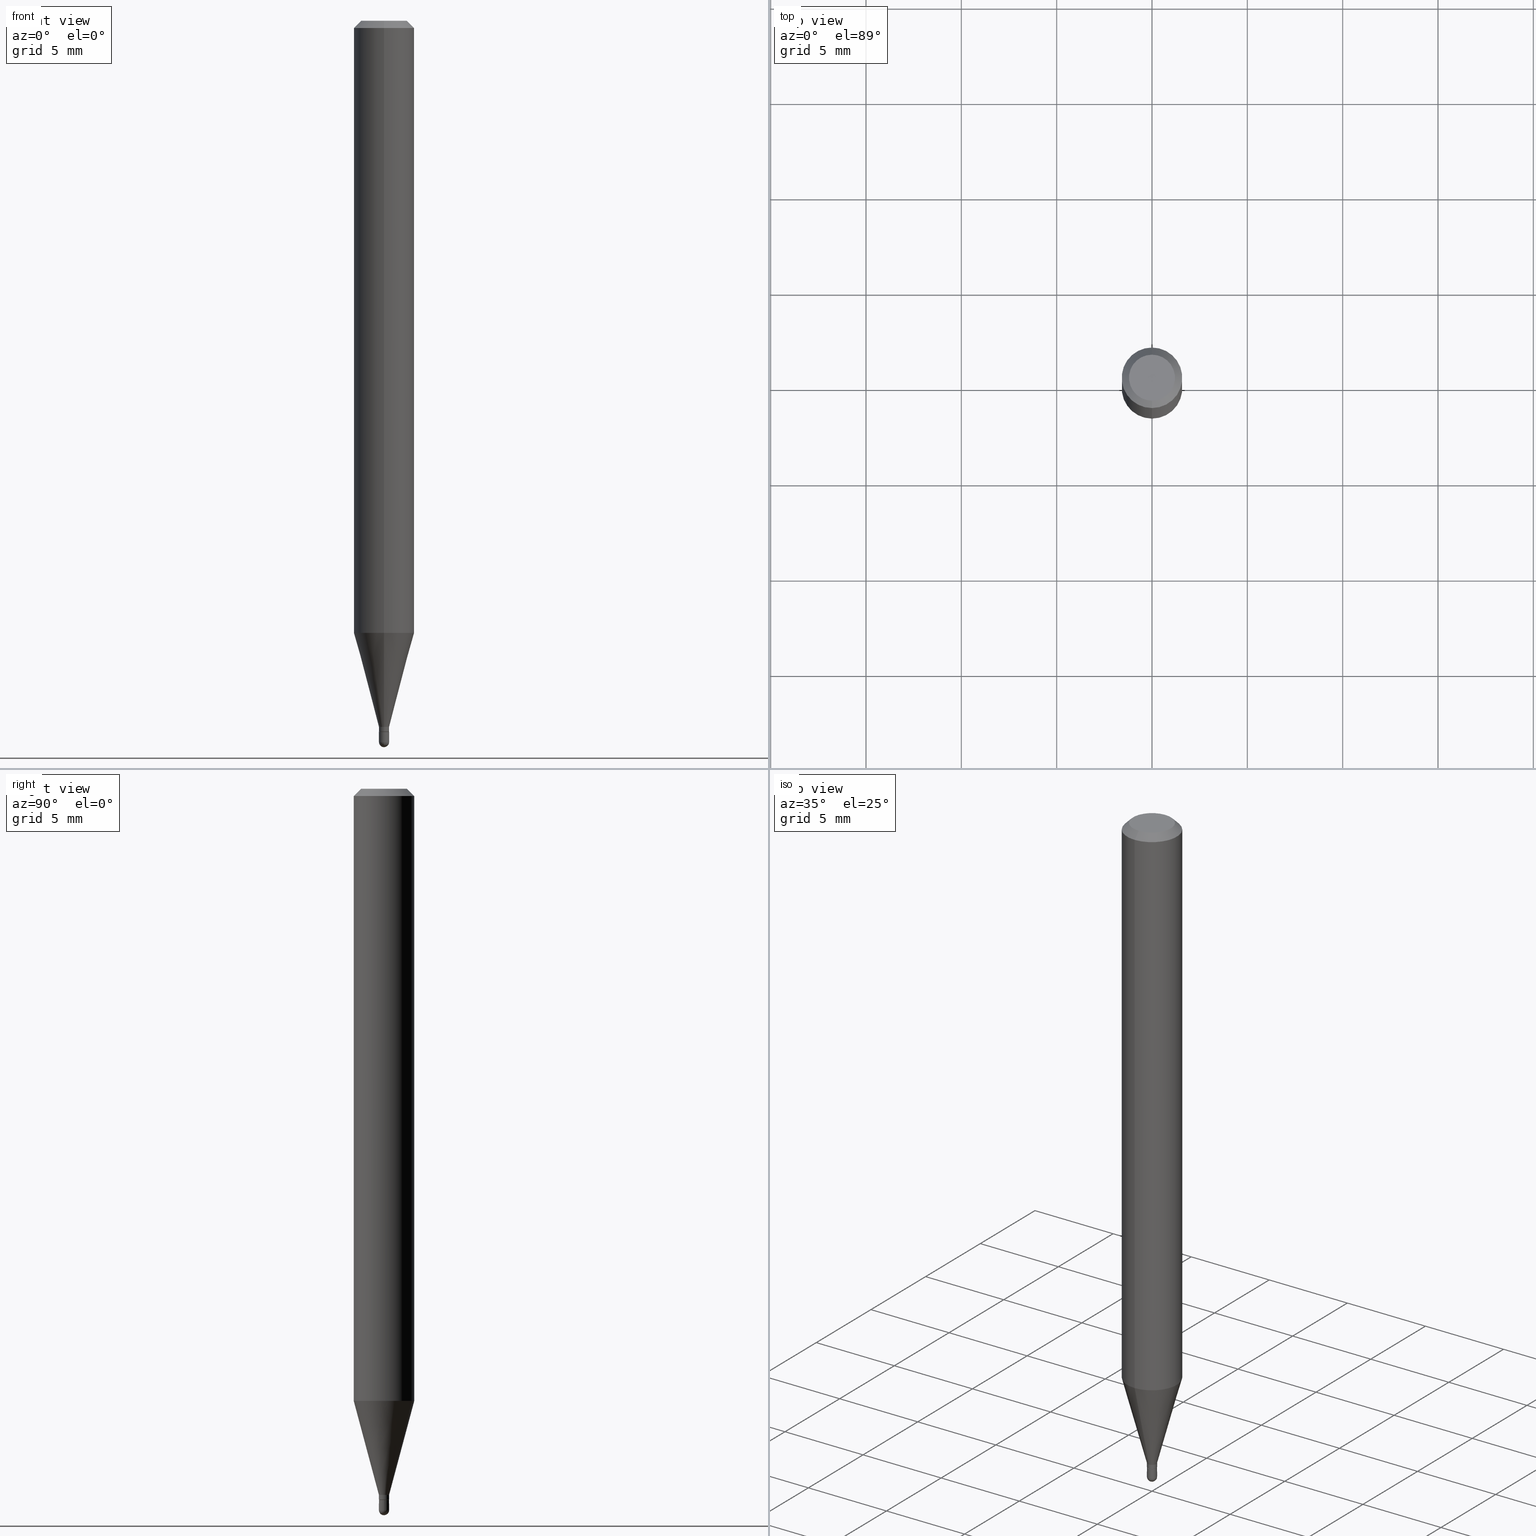
[diagram: canonical four-view strip — front | top / right | iso, engineering-drawing reading convention]
A machine part, canonical four-view strip (front | top / right | iso — engineering-drawing reading convention). The complete STEP part file that produces these views, byte-faithful:
ISO-10303-21;
HEADER;
FILE_DESCRIPTION (( 'STEP AP203' ),
    '1' );
FILE_NAME ('00756.STEP',
    '2024-03-07T18:13:10',
    ( '' ),
    ( '' ),
    'SwSTEP 2.0',
    'SolidWorks 2023',
    '' );
FILE_SCHEMA (( 'CONFIG_CONTROL_DESIGN' ));
ENDSEC;

DATA;
#1 = PRODUCT_RELATED_PRODUCT_CATEGORY ( 'detail', '', ( #112 ) ) ;
#2 = APPLICATION_CONTEXT ( 'configuration controlled 3d designs of mechanical parts and assemblies' ) ;
#3 = DIRECTION ( 'NONE',  ( 4.937700262164548042E-15, 0.7071067811865451302, -0.7071067811865499042 ) ) ;
#4 = ORIENTED_EDGE ( 'NONE', *, *, #195, .F. ) ;
#5 = DIRECTION ( 'NONE',  ( -2.445468806185136597E-29, 3.491481338843145583E-15, 1.000000000000000000 ) ) ;
#6 = ORIENTED_EDGE ( 'NONE', *, *, #237, .F. ) ;
#7 = DIRECTION ( 'NONE',  ( -2.445454255719101212E-29, 3.491502175938669574E-15, 1.000000000000000000 ) ) ;
#8 = EDGE_LOOP ( 'NONE', ( #261, #105, #172, #247 ) ) ;
#9 = EDGE_LOOP ( 'NONE', ( #489, #188, #263, #484 ) ) ;
#10 = DIRECTION ( 'NONE',  ( -2.445454255719101212E-29, 3.491502175938669574E-15, 1.000000000000000000 ) ) ;
#11 = AXIS2_PLACEMENT_3D ( 'NONE', #372, #234, #76 ) ;
#12 = DIRECTION ( 'NONE',  ( -6.982962677686265922E-15, -1.000000000000000000, 3.483106191921935554E-15 ) ) ;
#13 = MANIFOLD_SOLID_BREP ( 'Body-Move/Copy2[1]', #165 ) ;
#14 = ORIENTED_EDGE ( 'NONE', *, *, #253, .T. ) ;
#15 = DIRECTION ( 'NONE',  ( -6.982962677686266711E-15, -1.000000000000000000, 3.491502175938670362E-15 ) ) ;
#16 = CARTESIAN_POINT ( 'NONE',  ( 0.000000000000000000, 0.000000000000000000, 0.000000000000000000 ) ) ;
#17 = LENGTH_MEASURE_WITH_UNIT ( LENGTH_MEASURE( 0.02539999999999999897 ), #493 );
#18 = ORIENTED_EDGE ( 'NONE', *, *, #453, .F. ) ;
#19 = CARTESIAN_POINT ( 'NONE',  ( 3.641627862209123003E-29, -5.201847333345970488E-15, -1.489500000000000046 ) ) ;
#20 = DIRECTION ( 'NONE',  ( -2.445454255719101212E-29, 3.491502175938669574E-15, 1.000000000000000000 ) ) ;
#21 = CIRCLE ( 'NONE', #108, 0.01050000000000000412 ) ;
#22 = APPROVAL_PERSON_ORGANIZATION ( #391, #355, #305 ) ;
#23 = CARTESIAN_POINT ( 'NONE',  ( 3.589926847395640749E-29, -5.125525194277967014E-15, -1.467999999999999972 ) ) ;
#24 =( NAMED_UNIT ( * ) PLANE_ANGLE_UNIT ( ) SI_UNIT ( $, .RADIAN. ) );
#25 = DIRECTION ( 'NONE',  ( 6.982962677686265133E-15, 1.000000000000000000, 0.000000000000000000 ) ) ;
#26 = DIRECTION ( 'NONE',  ( -2.445454255719101212E-29, 3.491502175938669574E-15, 1.000000000000000000 ) ) ;
#27 = PERSON_AND_ORGANIZATION ( #228, #107 ) ;
#28 = VERTEX_POINT ( 'NONE', #214 ) ;
#29 = CARTESIAN_POINT ( 'NONE',  ( 0.000000000000000000, 0.000000000000000000, 0.000000000000000000 ) ) ;
#30 = CIRCLE ( 'NONE', #283, 0.01050000000000000412 ) ;
#31 = APPROVAL_STATUS ( 'not_yet_approved' ) ;
#32 = PERSON_AND_ORGANIZATION ( #228, #107 ) ;
#33 = DIRECTION ( 'NONE',  ( -2.445454255719101212E-29, 3.491502175938669574E-15, 1.000000000000000000 ) ) ;
#34 = ORIENTED_EDGE ( 'NONE', *, *, #386, .F. ) ;
#35 = APPLICATION_CONTEXT ( 'configuration controlled 3d designs of mechanical parts and assemblies' ) ;
#36 = VERTEX_POINT ( 'NONE', #52 ) ;
#37 = EDGE_CURVE ( 'NONE', #504, #150, #381, .T. ) ;
#38 = FACE_OUTER_BOUND ( 'NONE', #88, .T. ) ;
#39 = DIRECTION ( 'NONE',  ( -2.445454255719101212E-29, 3.491502175938669574E-15, 1.000000000000000000 ) ) ;
#40 = ADVANCED_FACE ( 'NONE', ( #290 ), #343, .T. ) ;
#41 = CARTESIAN_POINT ( 'NONE',  ( 7.460698725484561614E-17, 0.01049999999999483465, -1.458000000000000185 ) ) ;
#42 = AXIS2_PLACEMENT_3D ( 'NONE', #19, #420, #266 ) ;
#43 = AXIS2_PLACEMENT_3D ( 'NONE', #129, #20, #12 ) ;
#44 = DIRECTION ( 'NONE',  ( -2.445454255719101212E-29, 3.491502175938669574E-15, 1.000000000000000000 ) ) ;
#45 = FACE_OUTER_BOUND ( 'NONE', #8, .T. ) ;
#46 = ORIENTED_EDGE ( 'NONE', *, *, #280, .T. ) ;
#47 = DIRECTION ( 'NONE',  ( -2.445454255719101212E-29, 3.491502175938669574E-15, 1.000000000000000000 ) ) ;
#48 = VERTEX_POINT ( 'NONE', #242 ) ;
#49 = DIRECTION ( 'NONE',  ( -6.982962677686266711E-15, -1.000000000000000000, 0.000000000000000000 ) ) ;
#50 = CIRCLE ( 'NONE', #307, 0.06250000000000000000 ) ;
#51 = AXIS2_PLACEMENT_3D ( 'NONE', #126, #296, #383 ) ;
#52 = CARTESIAN_POINT ( 'NONE',  ( -4.364351673553912750E-16, -0.06250000000000005551, -0.01499999999999979128 ) ) ;
#53 = VERTEX_POINT ( 'NONE', #406 ) ;
#54 = FACE_OUTER_BOUND ( 'NONE', #162, .T. ) ;
#55 = CC_DESIGN_PERSON_AND_ORGANIZATION_ASSIGNMENT ( #268, #426, ( #377 ) ) ;
#56 = CARTESIAN_POINT ( 'NONE',  ( 3.565472304838449860E-29, -5.090610172518580504E-15, -1.458000000000000185 ) ) ;
#57 = CARTESIAN_POINT ( 'NONE',  ( 4.440892098500936776E-16, 0.06249999999999993755, -0.01500000000000022669 ) ) ;
#58 = AXIS2_PLACEMENT_3D ( 'NONE', #399, #507, #156 ) ;
#59 = CONICAL_SURFACE ( 'NONE', #192, 0.01000000000000000194, 0.7853981633974739252 ) ;
#60 = APPROVAL_STATUS ( 'not_yet_approved' ) ;
#61 = CC_DESIGN_PERSON_AND_ORGANIZATION_ASSIGNMENT ( #190, #181, ( #153 ) ) ;
#62 = CARTESIAN_POINT ( 'NONE',  ( 0.000000000000000000, 0.000000000000000000, 0.000000000000000000 ) ) ;
#63 = PERSON_AND_ORGANIZATION_ROLE ( 'design_supplier' ) ;
#64 = CONICAL_SURFACE ( 'NONE', #135, 0.01049999999999992432, 0.2617993877991504625 ) ;
#65 = CIRCLE ( 'NONE', #123, 0.01049999999999992606 ) ;
#66 = DIRECTION ( 'NONE',  ( -6.982962677686266711E-15, -1.000000000000000000, 3.491502175938670362E-15 ) ) ;
#67 = CIRCLE ( 'NONE', #414, 0.01049999999999992432 ) ;
#68 = ORIENTED_EDGE ( 'NONE', *, *, #486, .F. ) ;
#69 = FACE_OUTER_BOUND ( 'NONE', #373, .T. ) ;
#70 = VERTEX_POINT ( 'NONE', #127 ) ;
#71 = ADVANCED_FACE ( 'NONE', ( #418 ), #59, .T. ) ;
#72 = ORIENTED_EDGE ( 'NONE', *, *, #189, .F. ) ;
#73 = FACE_OUTER_BOUND ( 'NONE', #407, .T. ) ;
#74 = ORIENTED_EDGE ( 'NONE', *, *, #310, .F. ) ;
#75 = AXIS2_PLACEMENT_3D ( 'NONE', #287, #169, #478 ) ;
#76 = DIRECTION ( 'NONE',  ( -6.982962677686266711E-15, -1.000000000000000000, 0.000000000000000000 ) ) ;
#77 = EDGE_LOOP ( 'NONE', ( #368, #231, #144, #72 ) ) ;
#78 = EDGE_CURVE ( 'NONE', #504, #36, #259, .T. ) ;
#79 = DIRECTION ( 'NONE',  ( -6.982962677686265922E-15, -1.000000000000000000, 4.370956789862821150E-15 ) ) ;
#80 = ORIENTED_EDGE ( 'NONE', *, *, #130, .T. ) ;
#81 = CARTESIAN_POINT ( 'NONE',  ( 7.283063041544588178E-17, 0.009999999999994875835, -1.467999999999999972 ) ) ;
#82 = EDGE_CURVE ( 'NONE', #70, #476, #254, .T. ) ;
#83 = DIRECTION ( 'NONE',  ( -2.445454255719101212E-29, 3.491502175938669574E-15, 1.000000000000000000 ) ) ;
#84 = APPROVAL_PERSON_ORGANIZATION ( #220, #110, #149 ) ;
#85 = CARTESIAN_POINT ( 'NONE',  ( 3.588704120267781289E-29, -5.123779443189998004E-15, -1.467500000000000027 ) ) ;
#86 = AXIS2_PLACEMENT_3D ( 'NONE', #434, #397, #194 ) ;
#87 = CARTESIAN_POINT ( 'NONE',  ( 3.642525786812761109E-29, -5.200561454206865813E-15, -1.489500000000000046 ) ) ;
#88 = EDGE_LOOP ( 'NONE', ( #349, #395, #154, #6 ) ) ;
#89 = SPHERICAL_SURFACE ( 'NONE', #42, 0.01050000000000003535 ) ;
#90 = ORIENTED_EDGE ( 'NONE', *, *, #37, .F. ) ;
#91 = LINE ( 'NONE', #452, #491 ) ;
#92 = ADVANCED_FACE ( 'NONE', ( #142 ), #464, .T. ) ;
#93 = ORIENTED_EDGE ( 'NONE', *, *, #384, .T. ) ;
#94 = CYLINDRICAL_SURFACE ( 'NONE', #317, 0.06250000000000000000 ) ;
#95 = FACE_OUTER_BOUND ( 'NONE', #121, .T. ) ;
#96 = AXIS2_PLACEMENT_3D ( 'NONE', #56, #274, #249 ) ;
#97 = VECTOR ( 'NONE', #488, 39.37007874015748143 ) ;
#98 = EDGE_CURVE ( 'NONE', #150, #504, #315, .T. ) ;
#99 = DIRECTION ( 'NONE',  ( -2.445468806185136597E-29, 3.491481338843145583E-15, 1.000000000000000000 ) ) ;
#100 =( CONVERSION_BASED_UNIT ( 'INCH', #17 ) LENGTH_UNIT ( ) NAMED_UNIT ( #324 ) );
#101 = PERSON_AND_ORGANIZATION ( #228, #107 ) ;
#102 = CC_DESIGN_PERSON_AND_ORGANIZATION_ASSIGNMENT ( #337, #461, ( #112 ) ) ;
#103 = CALENDAR_DATE ( 2024, 7, 3 ) ;
#104 = APPROVAL_STATUS ( 'not_yet_approved' ) ;
#105 = ORIENTED_EDGE ( 'NONE', *, *, #125, .T. ) ;
#106 = APPROVAL_DATE_TIME ( #385, #252 ) ;
#107 = ORGANIZATION ( 'UNSPECIFIED', 'UNSPECIFIED', '' ) ;
#108 = AXIS2_PLACEMENT_3D ( 'NONE', #87, #118, #475 ) ;
#109 = PRODUCT_DEFINITION_FORMATION_WITH_SPECIFIED_SOURCE ( 'ANY', '', #112, .NOT_KNOWN. ) ;
#110 = APPROVAL ( #31, 'UNSPECIFIED' ) ;
#111 = ORIENTED_EDGE ( 'NONE', *, *, #311, .T. ) ;
#112 = PRODUCT ( '00756', '00756', '', ( #302 ) ) ;
#113 = DIRECTION ( 'NONE',  ( -2.445454255719101212E-29, 3.491502175938669574E-15, 1.000000000000000000 ) ) ;
#114 = DIRECTION ( 'NONE',  ( -2.445454255719101212E-29, 3.491502175938669574E-15, 1.000000000000000000 ) ) ;
#115 = EDGE_CURVE ( 'NONE', #124, #341, #270, .T. ) ;
#116 = LINE ( 'NONE', #279, #166 ) ;
#117 = VECTOR ( 'NONE', #257, 39.37007874015748143 ) ;
#118 = DIRECTION ( 'NONE',  ( -2.445468806185136597E-29, 3.491481338843145583E-15, 1.000000000000000000 ) ) ;
#119 = LINE ( 'NONE', #477, #492 ) ;
#120 = CARTESIAN_POINT ( 'NONE',  ( 0.01050000000000000239, -5.198815713537444309E-15, -1.467999999999999972 ) ) ;
#121 = EDGE_LOOP ( 'NONE', ( #309, #133, #46, #503 ) ) ;
#122 = LINE ( 'NONE', #392, #277 ) ;
#123 = AXIS2_PLACEMENT_3D ( 'NONE', #85, #506, #313 ) ;
#124 = VERTEX_POINT ( 'NONE', #81 ) ;
#125 = EDGE_CURVE ( 'NONE', #174, #53, #65, .T. ) ;
#126 = CARTESIAN_POINT ( 'NONE',  ( 3.589926847395640749E-29, -5.125525194277967014E-15, -1.467999999999999972 ) ) ;
#127 = CARTESIAN_POINT ( 'NONE',  ( 3.667754246975886403E-29, -5.237864947834270909E-15, -1.500000000000000222 ) ) ;
#128 = ORIENTED_EDGE ( 'NONE', *, *, #495, .T. ) ;
#129 = CARTESIAN_POINT ( 'NONE',  ( 3.668181383578653902E-31, -5.237253263908007368E-17, -0.01500000000000000812 ) ) ;
#130 = EDGE_CURVE ( 'NONE', #251, #322, #116, .T. ) ;
#131 = ORIENTED_EDGE ( 'NONE', *, *, #140, .F. ) ;
#132 = CARTESIAN_POINT ( 'NONE',  ( 3.589948207479780735E-29, -5.125494605421738004E-15, -1.467999999999999972 ) ) ;
#133 = ORIENTED_EDGE ( 'NONE', *, *, #115, .T. ) ;
#134 = ADVANCED_FACE ( 'NONE', ( #357 ), #402, .F. ) ;
#135 = AXIS2_PLACEMENT_3D ( 'NONE', #367, #212, #49 ) ;
#136 = DIRECTION ( 'NONE',  ( 2.445454255719101212E-29, -3.491502175938669574E-15, -1.000000000000000000 ) ) ;
#137 = CIRCLE ( 'NONE', #43, 0.06250000000000000000 ) ;
#138 = CARTESIAN_POINT ( 'NONE',  ( 7.105427357604591324E-17, 0.009999999999994875835, -1.467999999999999972 ) ) ;
#139 = DIRECTION ( 'NONE',  ( 1.000000000000000000, 0.000000000000000000, 0.000000000000000000 ) ) ;
#140 = EDGE_CURVE ( 'NONE', #322, #455, #446, .T. ) ;
#141 = DESIGN_CONTEXT ( 'detailed design', #35, 'design' ) ;
#142 = FACE_OUTER_BOUND ( 'NONE', #213, .T. ) ;
#143 = CARTESIAN_POINT ( 'NONE',  ( 2.166508583508823253E-46, -3.093236937808313430E-32, -8.859329829793720480E-18 ) ) ;
#144 = ORIENTED_EDGE ( 'NONE', *, *, #384, .F. ) ;
#145 = ORIENTED_EDGE ( 'NONE', *, *, #301, .T. ) ;
#146 = DATE_AND_TIME ( #303, #177 ) ;
#147 = ORIENTED_EDGE ( 'NONE', *, *, #412, .T. ) ;
#148 = ADVANCED_FACE ( 'NONE', ( #332 ), #419, .T. ) ;
#149 = APPROVAL_ROLE ( '' ) ;
#150 = VERTEX_POINT ( 'NONE', #371 ) ;
#151 = CC_DESIGN_APPROVAL ( #110, ( #153 ) ) ;
#152 = CIRCLE ( 'NONE', #325, 0.01000000000000000194 ) ;
#153 = SECURITY_CLASSIFICATION ( '', '', #226 ) ;
#154 = ORIENTED_EDGE ( 'NONE', *, *, #495, .F. ) ;
#155 = SPHERICAL_SURFACE ( 'NONE', #58, 0.01050000000000003535 ) ;
#156 = DIRECTION ( 'NONE',  ( 6.982962677686265922E-15, 1.000000000000000000, 0.000000000000000000 ) ) ;
#157 = EDGE_CURVE ( 'NONE', #341, #124, #152, .T. ) ;
#158 = DIRECTION ( 'NONE',  ( -2.445454255719100651E-29, 3.491502175938669574E-15, 1.000000000000000000 ) ) ;
#159 = CARTESIAN_POINT ( 'NONE',  ( 4.364351673553919652E-16, 0.06249999999999995143, -0.01500000000000022669 ) ) ;
#160 = CARTESIAN_POINT ( 'NONE',  ( 0.000000000000000000, 0.000000000000000000, 0.000000000000000000 ) ) ;
#161 = VERTEX_POINT ( 'NONE', #424 ) ;
#162 = EDGE_LOOP ( 'NONE', ( #74, #191, #197, #393 ) ) ;
#163 = CARTESIAN_POINT ( 'NONE',  ( 3.565472304838449860E-29, -5.090610172518580504E-15, -1.458000000000000185 ) ) ;
#164 = ORIENTED_EDGE ( 'NONE', *, *, #78, .F. ) ;
#165 = CLOSED_SHELL ( 'NONE', ( #92, #267, #182, #175, #148 ) ) ;
#166 = VECTOR ( 'NONE', #323, 39.37007874015748143 ) ;
#167 = ORIENTED_EDGE ( 'NONE', *, *, #253, .F. ) ;
#168 = DIRECTION ( 'NONE',  ( 6.982962677686265922E-15, 1.000000000000000000, -3.483106191921935554E-15 ) ) ;
#169 = DIRECTION ( 'NONE',  ( 2.438088387897960049E-29, -3.491481338843145188E-15, -1.000000000000000000 ) ) ;
#170 = CARTESIAN_POINT ( 'NONE',  ( -0.01050000000000000239, -5.088421042559490534E-15, -1.467999999999999972 ) ) ;
#171 = CC_DESIGN_PERSON_AND_ORGANIZATION_ASSIGNMENT ( #101, #63, ( #109 ) ) ;
#172 = ORIENTED_EDGE ( 'NONE', *, *, #473, .T. ) ;
#173 = DIRECTION ( 'NONE',  ( -2.445468806185136597E-29, 3.491481338843145583E-15, 1.000000000000000000 ) ) ;
#174 = VERTEX_POINT ( 'NONE', #206 ) ;
#175 = ADVANCED_FACE ( 'NONE', ( #320 ), #89, .T. ) ;
#176 = ORIENTED_EDGE ( 'NONE', *, *, #140, .T. ) ;
#177 = LOCAL_TIME ( 13, 13, 10.00000000000000000, #465 ) ;
#178 = DIRECTION ( 'NONE',  ( -2.445454255719101212E-29, 3.491502175938669574E-15, 1.000000000000000000 ) ) ;
#179 = CC_DESIGN_APPROVAL ( #252, ( #109 ) ) ;
#180 = DIRECTION ( 'NONE',  ( -2.445454255719101212E-29, 3.491502175938669574E-15, 1.000000000000000000 ) ) ;
#181 = PERSON_AND_ORGANIZATION_ROLE ( 'classification_officer' ) ;
#182 = ADVANCED_FACE ( 'NONE', ( #69 ), #370, .F. ) ;
#183 = DATE_AND_TIME ( #388, #304 ) ;
#184 = MANIFOLD_SOLID_BREP ( 'Body-Move/Copy2[2]', #360 ) ;
#185 = CALENDAR_DATE ( 2024, 7, 3 ) ;
#186 = AXIS2_PLACEMENT_3D ( 'NONE', #217, #289, #376 ) ;
#187 = CALENDAR_DATE ( 2024, 7, 3 ) ;
#188 = ORIENTED_EDGE ( 'NONE', *, *, #82, .T. ) ;
#189 = EDGE_CURVE ( 'NONE', #221, #36, #122, .T. ) ;
#190 = PERSON_AND_ORGANIZATION ( #228, #107 ) ;
#191 = ORIENTED_EDGE ( 'NONE', *, *, #227, .T. ) ;
#192 = AXIS2_PLACEMENT_3D ( 'NONE', #380, #26, #331 ) ;
#193 = ADVANCED_FACE ( 'NONE', ( #306 ), #396, .T. ) ;
#194 = DIRECTION ( 'NONE',  ( 6.982962677686265922E-15, 1.000000000000000000, -3.491502175938669574E-15 ) ) ;
#195 = EDGE_CURVE ( 'NONE', #53, #174, #462, .T. ) ;
#196 = CYLINDRICAL_SURFACE ( 'NONE', #369, 0.01049999999999992432 ) ;
#197 = ORIENTED_EDGE ( 'NONE', *, *, #189, .T. ) ;
#198 = LINE ( 'NONE', #159, #216 ) ;
#199 = CIRCLE ( 'NONE', #245, 0.01050000000000000239 ) ;
#200 = AXIS2_PLACEMENT_3D ( 'NONE', #363, #5, #449 ) ;
#201 = VECTOR ( 'NONE', #312, 39.37007874015748854 ) ;
#202 = FACE_OUTER_BOUND ( 'NONE', #77, .T. ) ;
#203 = ADVANCED_FACE ( 'NONE', ( #73 ), #196, .T. ) ;
#204 = ORIENTED_EDGE ( 'NONE', *, *, #219, .T. ) ;
#205 = CYLINDRICAL_SURFACE ( 'NONE', #508, 0.01049999999999992432 ) ;
#206 = CARTESIAN_POINT ( 'NONE',  ( 7.460698725484561614E-17, 0.01049999999999476699, -1.467500000000000027 ) ) ;
#207 = FACE_OUTER_BOUND ( 'NONE', #284, .T. ) ;
#208 = ORIENTED_EDGE ( 'NONE', *, *, #37, .T. ) ;
#209 = CC_DESIGN_DATE_AND_TIME_ASSIGNMENT ( #146, #394, ( #377 ) ) ;
#210 = CARTESIAN_POINT ( 'NONE',  ( 3.668181383578653902E-31, -5.237253263908007368E-17, -0.01500000000000000812 ) ) ;
#211 = ORIENTED_EDGE ( 'NONE', *, *, #115, .F. ) ;
#212 = DIRECTION ( 'NONE',  ( -2.445454255719101212E-29, 3.491502175938669574E-15, 1.000000000000000000 ) ) ;
#213 = EDGE_LOOP ( 'NONE', ( #272, #269, #131, #448, #316 ) ) ;
#214 = CARTESIAN_POINT ( 'NONE',  ( -7.460698725477422422E-17, -0.01050000000000522217, -1.489500000000000046 ) ) ;
#215 = DIRECTION ( 'NONE',  ( -2.445454255719101212E-29, 3.491502175938669574E-15, 1.000000000000000000 ) ) ;
#216 = VECTOR ( 'NONE', #3, 39.37007874015748143 ) ;
#217 = CARTESIAN_POINT ( 'NONE',  ( 3.090891209282131815E-29, -4.413026069720881055E-15, -1.263933358006419150 ) ) ;
#218 = CIRCLE ( 'NONE', #389, 0.01050000000000000412 ) ;
#219 = EDGE_CURVE ( 'NONE', #28, #251, #21, .T. ) ;
#220 = PERSON_AND_ORGANIZATION ( #228, #107 ) ;
#221 = VERTEX_POINT ( 'NONE', #276 ) ;
#222 = EDGE_CURVE ( 'NONE', #70, #28, #469, .T. ) ;
#223 = DATE_AND_TIME ( #185, #403 ) ;
#224 = ORIENTED_EDGE ( 'NONE', *, *, #98, .T. ) ;
#225 = PRODUCT_DEFINITION_SHAPE ( 'NONE', 'NONE',  #377 ) ;
#226 = SECURITY_CLASSIFICATION_LEVEL ( 'unclassified' ) ;
#227 = EDGE_CURVE ( 'NONE', #48, #221, #50, .T. ) ;
#228 = PERSON ( 'UNSPECIFIED', 'UNSPECIFIED', 'UNSPECIFIED', ('UNSPECIFIED'), ('UNSPECIFIED'), ('UNSPECIFIED') ) ;
#229 = CARTESIAN_POINT ( 'NONE',  ( 3.589926847395640749E-29, -5.125525194277967014E-15, -1.467999999999999972 ) ) ;
#230 = ORIENTED_EDGE ( 'NONE', *, *, #286, .T. ) ;
#231 = ORIENTED_EDGE ( 'NONE', *, *, #310, .T. ) ;
#232 = APPLICATION_PROTOCOL_DEFINITION ( 'international standard', 'config_control_design', 1994, #35 ) ;
#233 = VERTEX_POINT ( 'NONE', #238 ) ;
#234 = DIRECTION ( 'NONE',  ( -2.445454255719101212E-29, 3.491502175938669574E-15, 1.000000000000000000 ) ) ;
#235 = ADVANCED_FACE ( 'NONE', ( #236 ), #356, .F. ) ;
#236 = FACE_OUTER_BOUND ( 'NONE', #346, .T. ) ;
#237 = EDGE_CURVE ( 'NONE', #476, #431, #218, .T. ) ;
#238 = CARTESIAN_POINT ( 'NONE',  ( 2.593480985524697824E-16, 0.01049999999999483465, -1.458000000000000185 ) ) ;
#239 = LINE ( 'NONE', #314, #427 ) ;
#240 = LINE ( 'NONE', #404, #470 ) ;
#241 = CONICAL_SURFACE ( 'NONE', #51, 0.01000000000000000194, 0.7853981633974739252 ) ;
#242 = CARTESIAN_POINT ( 'NONE',  ( 4.440892098500932831E-16, 0.06249999999999556605, -1.263933358006419372 ) ) ;
#243 = AXIS2_PLACEMENT_3D ( 'NONE', #321, #275, #445 ) ;
#244 = DIRECTION ( 'NONE',  ( -6.982962677686265922E-15, -1.000000000000000000, 3.491502175938669574E-15 ) ) ;
#245 = AXIS2_PLACEMENT_3D ( 'NONE', #132, #173, #460 ) ;
#246 = CARTESIAN_POINT ( 'NONE',  ( 3.090891209282131815E-29, -4.413026069720881055E-15, -1.263933358006419150 ) ) ;
#247 = ORIENTED_EDGE ( 'NONE', *, *, #412, .F. ) ;
#248 = CARTESIAN_POINT ( 'NONE',  ( 2.166508583508823253E-46, -3.093236937808313430E-32, -8.859329829793720480E-18 ) ) ;
#249 = DIRECTION ( 'NONE',  ( -6.982962677686266711E-15, -1.000000000000000000, 0.000000000000000000 ) ) ;
#250 = DIRECTION ( 'NONE',  ( -2.445454255719101212E-29, 3.491502175938669574E-15, 1.000000000000000000 ) ) ;
#251 = VERTEX_POINT ( 'NONE', #362 ) ;
#252 = APPROVAL ( #60, 'UNSPECIFIED' ) ;
#253 = EDGE_CURVE ( 'NONE', #161, #233, #511, .T. ) ;
#254 = CIRCLE ( 'NONE', #278, 0.01050000000000003535 ) ;
#255 = LINE ( 'NONE', #293, #430 ) ;
#256 = DIRECTION ( 'NONE',  ( 6.982962677686265922E-15, 1.000000000000000000, -3.483106191921935554E-15 ) ) ;
#257 = DIRECTION ( 'NONE',  ( -2.445468806185136877E-29, 3.491481338843145188E-15, 1.000000000000000000 ) ) ;
#258 = ORIENTED_EDGE ( 'NONE', *, *, #157, .T. ) ;
#259 = LINE ( 'NONE', #342, #510 ) ;
#260 = AXIS2_PLACEMENT_3D ( 'NONE', #29, #499, #298 ) ;
#261 = ORIENTED_EDGE ( 'NONE', *, *, #311, .F. ) ;
#262 = COORDINATED_UNIVERSAL_TIME_OFFSET ( 5, 0, .BEHIND. ) ;
#263 = ORIENTED_EDGE ( 'NONE', *, *, #264, .F. ) ;
#264 = EDGE_CURVE ( 'NONE', #251, #476, #345, .T. ) ;
#265 = PERSON_AND_ORGANIZATION_ROLE ( 'creator' ) ;
#266 = DIRECTION ( 'NONE',  ( 6.982962677686265922E-15, 1.000000000000000000, 0.000000000000000000 ) ) ;
#267 = ADVANCED_FACE ( 'NONE', ( #38 ), #155, .T. ) ;
#268 = PERSON_AND_ORGANIZATION ( #228, #107 ) ;
#269 = ORIENTED_EDGE ( 'NONE', *, *, #386, .T. ) ;
#270 = CIRCLE ( 'NONE', #353, 0.01000000000000000194 ) ;
#271 =( GEOMETRIC_REPRESENTATION_CONTEXT ( 3 ) GLOBAL_UNCERTAINTY_ASSIGNED_CONTEXT ( ( #365 ) ) GLOBAL_UNIT_ASSIGNED_CONTEXT ( ( #100, #24, #299 ) ) REPRESENTATION_CONTEXT ( 'NONE', 'WORKASPACE' ) );
#272 = ORIENTED_EDGE ( 'NONE', *, *, #237, .T. ) ;
#273 = EDGE_LOOP ( 'NONE', ( #14, #230, #18, #68 ) ) ;
#274 = DIRECTION ( 'NONE',  ( -2.445454255719101212E-29, 3.491502175938669574E-15, 1.000000000000000000 ) ) ;
#275 = DIRECTION ( 'NONE',  ( -1.000000000000000000, 7.105427357601001070E-15, -4.926315508542082329E-29 ) ) ;
#276 = CARTESIAN_POINT ( 'NONE',  ( -4.364351673553607559E-16, -0.06250000000000441314, -1.263933358006418706 ) ) ;
#277 = VECTOR ( 'NONE', #33, 39.37007874015748143 ) ;
#278 = AXIS2_PLACEMENT_3D ( 'NONE', #494, #422, #25 ) ;
#279 = CARTESIAN_POINT ( 'NONE',  ( 0.01050000000000000239, -7.332110811570581229E-17, 5.119985614585733248E-31 ) ) ;
#280 = EDGE_CURVE ( 'NONE', #341, #53, #239, .T. ) ;
#281 = DIRECTION ( 'NONE',  ( -6.982962677686266711E-15, -1.000000000000000000, 3.491502175938669574E-15 ) ) ;
#282 = DIRECTION ( 'NONE',  ( -6.982962677686266711E-15, -1.000000000000000000, 3.491502175938669574E-15 ) ) ;
#283 = AXIS2_PLACEMENT_3D ( 'NONE', #483, #99, #458 ) ;
#284 = EDGE_LOOP ( 'NONE', ( #417, #147, #487, #390 ) ) ;
#285 = CARTESIAN_POINT ( 'NONE',  ( -0.01050000000000000239, 7.460698725481053648E-17, -5.164881844767652549E-31 ) ) ;
#286 = EDGE_CURVE ( 'NONE', #233, #48, #401, .T. ) ;
#287 = CARTESIAN_POINT ( 'NONE',  ( 7.332110811574169314E-17, 0.01049999999999487454, -1.467999999999999972 ) ) ;
#288 = DIRECTION ( 'NONE',  ( -6.982962677686266711E-15, -1.000000000000000000, 0.000000000000000000 ) ) ;
#289 = DIRECTION ( 'NONE',  ( -2.445454255719101212E-29, 3.491502175938669574E-15, 1.000000000000000000 ) ) ;
#290 = FACE_OUTER_BOUND ( 'NONE', #375, .T. ) ;
#291 = AXIS2_PLACEMENT_3D ( 'NONE', #160, #114, #480 ) ;
#292 = CONICAL_SURFACE ( 'NONE', #352, 0.06250000000000000000, 0.7853981633974483900 ) ;
#293 = CARTESIAN_POINT ( 'NONE',  ( -7.332110811566961097E-17, -0.01050000000000501574, -1.458000000000000185 ) ) ;
#294 = DIRECTION ( 'NONE',  ( -2.445468806185136597E-29, 3.491481338843145583E-15, 1.000000000000000000 ) ) ;
#295 = ADVANCED_FACE ( 'NONE', ( #45 ), #205, .T. ) ;
#296 = DIRECTION ( 'NONE',  ( -2.445454255719101212E-29, 3.491502175938669574E-15, 1.000000000000000000 ) ) ;
#297 = COORDINATED_UNIVERSAL_TIME_OFFSET ( 5, 0, .BEHIND. ) ;
#298 = DIRECTION ( 'NONE',  ( 1.000000000000000000, -6.982962677686265922E-15, 4.876176775795935232E-29 ) ) ;
#299 =( NAMED_UNIT ( * ) SI_UNIT ( $, .STERADIAN. ) SOLID_ANGLE_UNIT ( ) );
#300 = AXIS2_PLACEMENT_3D ( 'NONE', #143, #425, #66 ) ;
#301 = EDGE_CURVE ( 'NONE', #150, #400, #198, .T. ) ;
#302 = MECHANICAL_CONTEXT ( 'NONE', #2, 'mechanical' ) ;
#303 = CALENDAR_DATE ( 2024, 7, 3 ) ;
#304 = LOCAL_TIME ( 13, 13, 10.00000000000000000, #297 ) ;
#305 = APPROVAL_ROLE ( '' ) ;
#306 = FACE_OUTER_BOUND ( 'NONE', #273, .T. ) ;
#307 = AXIS2_PLACEMENT_3D ( 'NONE', #246, #39, #79 ) ;
#308 = APPROVAL_PERSON_ORGANIZATION ( #27, #252, #463 ) ;
#309 = ORIENTED_EDGE ( 'NONE', *, *, #457, .F. ) ;
#310 = EDGE_CURVE ( 'NONE', #48, #400, #119, .T. ) ;
#311 = EDGE_CURVE ( 'NONE', #174, #233, #240, .T. ) ;
#312 = DIRECTION ( 'NONE',  ( 1.839019923739601499E-15, 0.2588190451025251249, 0.9659258262890670910 ) ) ;
#313 = DIRECTION ( 'NONE',  ( -6.982962677686266711E-15, -1.000000000000000000, 0.000000000000000000 ) ) ;
#314 = CARTESIAN_POINT ( 'NONE',  ( -6.982962677682677640E-17, -0.01000000000000512805, -1.467999999999999972 ) ) ;
#315 = CIRCLE ( 'NONE', #300, 0.04749999999999999362 ) ;
#316 = ORIENTED_EDGE ( 'NONE', *, *, #264, .T. ) ;
#317 = AXIS2_PLACEMENT_3D ( 'NONE', #450, #215, #329 ) ;
#318 = ADVANCED_FACE ( 'NONE', ( #202 ), #471, .T. ) ;
#319 = CARTESIAN_POINT ( 'NONE',  ( 0.000000000000000000, 0.000000000000000000, 0.000000000000000000 ) ) ;
#320 = FACE_OUTER_BOUND ( 'NONE', #9, .T. ) ;
#321 = CARTESIAN_POINT ( 'NONE',  ( 3.641627862209123003E-29, -5.201847333345970488E-15, -1.489500000000000046 ) ) ;
#322 = VERTEX_POINT ( 'NONE', #120 ) ;
#323 = DIRECTION ( 'NONE',  ( -2.445468806185136877E-29, 3.491481338843145188E-15, 1.000000000000000000 ) ) ;
#324 = DIMENSIONAL_EXPONENTS ( 1.000000000000000000, 0.000000000000000000, 0.000000000000000000, 0.000000000000000000, 0.000000000000000000, 0.000000000000000000, 0.000000000000000000 ) ;
#325 = AXIS2_PLACEMENT_3D ( 'NONE', #23, #180, #451 ) ;
#326 = LINE ( 'NONE', #138, #97 ) ;
#327 = DIRECTION ( 'NONE',  ( -6.982962677686265922E-15, -1.000000000000000000, 3.483106191921935554E-15 ) ) ;
#328 = ORIENTED_EDGE ( 'NONE', *, *, #444, .T. ) ;
#329 = DIRECTION ( 'NONE',  ( -6.982962677686265922E-15, -1.000000000000000000, 3.491502175938669574E-15 ) ) ;
#330 = AXIS2_PLACEMENT_3D ( 'NONE', #62, #496, #139 ) ;
#331 = DIRECTION ( 'NONE',  ( -6.982962677686266711E-15, -1.000000000000000000, 0.000000000000000000 ) ) ;
#332 = FACE_OUTER_BOUND ( 'NONE', #447, .T. ) ;
#333 = CC_DESIGN_APPROVAL ( #355, ( #377 ) ) ;
#334 = CARTESIAN_POINT ( 'NONE',  ( -3.773273898774340269E-16, -0.04749999999999999362, 1.569870235272930603E-16 ) ) ;
#335 = EDGE_LOOP ( 'NONE', ( #366, #211 ) ) ;
#336 = DIRECTION ( 'NONE',  ( -4.851104656540964275E-15, -0.7071067811865500152, -0.7071067811865450192 ) ) ;
#337 = PERSON_AND_ORGANIZATION ( #228, #107 ) ;
#338 = COORDINATED_UNIVERSAL_TIME_OFFSET ( 5, 0, .BEHIND. ) ;
#339 = EDGE_LOOP ( 'NONE', ( #258, #502, #4, #482 ) ) ;
#340 = EDGE_CURVE ( 'NONE', #455, #322, #199, .T. ) ;
#341 = VERTEX_POINT ( 'NONE', #485 ) ;
#342 = CARTESIAN_POINT ( 'NONE',  ( -4.287811248607203282E-16, -0.06250000000000005551, -0.01499999999999979128 ) ) ;
#343 = CONICAL_SURFACE ( 'NONE', #436, 0.06250000000000000000, 0.7853981633974483900 ) ;
#344 = COORDINATED_UNIVERSAL_TIME_OFFSET ( 5, 0, .BEHIND. ) ;
#345 = CIRCLE ( 'NONE', #361, 0.01050000000000000412 ) ;
#346 = EDGE_LOOP ( 'NONE', ( #224, #208 ) ) ;
#347 = ADVANCED_FACE ( 'NONE', ( #54 ), #94, .T. ) ;
#348 = DATE_AND_TIME ( #187, #379 ) ;
#349 = ORIENTED_EDGE ( 'NONE', *, *, #82, .F. ) ;
#350 = ORIENTED_EDGE ( 'NONE', *, *, #78, .T. ) ;
#351 = ORIENTED_EDGE ( 'NONE', *, *, #340, .T. ) ;
#352 = AXIS2_PLACEMENT_3D ( 'NONE', #490, #136, #168 ) ;
#353 = AXIS2_PLACEMENT_3D ( 'NONE', #229, #423, #433 ) ;
#354 = DIRECTION ( 'NONE',  ( -2.445468806185136597E-29, 3.491481338843145583E-15, 1.000000000000000000 ) ) ;
#355 = APPROVAL ( #104, 'UNSPECIFIED' ) ;
#356 = PLANE ( 'NONE',  #86 ) ;
#357 = FACE_OUTER_BOUND ( 'NONE', #335, .T. ) ;
#358 = CIRCLE ( 'NONE', #382, 0.06250000000000000000 ) ;
#359 = DIRECTION ( 'NONE',  ( 1.000000000000000000, -6.982962677686284065E-15, 0.000000000000000000 ) ) ;
#360 = CLOSED_SHELL ( 'NONE', ( #203, #71, #40, #318, #193, #398, #347, #438, #235, #134, #466, #295 ) ) ;
#361 = AXIS2_PLACEMENT_3D ( 'NONE', #437, #512, #442 ) ;
#362 = CARTESIAN_POINT ( 'NONE',  ( 0.01050000000000000412, -5.236349137930007031E-15, -1.489500000000000046 ) ) ;
#363 = CARTESIAN_POINT ( 'NONE',  ( 3.589948207479780735E-29, -5.125494605421738004E-15, -1.467999999999999972 ) ) ;
#364 = DIRECTION ( 'NONE',  ( -6.982962677686266711E-15, -1.000000000000000000, 0.000000000000000000 ) ) ;
#365 = UNCERTAINTY_MEASURE_WITH_UNIT (LENGTH_MEASURE( 1.000000000000000082E-05 ), #100, 'distance_accuracy_value', 'NONE');
#366 = ORIENTED_EDGE ( 'NONE', *, *, #157, .F. ) ;
#367 = CARTESIAN_POINT ( 'NONE',  ( 3.565472304838449860E-29, -5.090610172518580504E-15, -1.458000000000000185 ) ) ;
#368 = ORIENTED_EDGE ( 'NONE', *, *, #453, .T. ) ;
#369 = AXIS2_PLACEMENT_3D ( 'NONE', #319, #113, #282 ) ;
#370 = PLANE ( 'NONE',  #75 ) ;
#371 = CARTESIAN_POINT ( 'NONE',  ( 3.840629472727447874E-16, 0.04749999999999999362, -1.747056831868805383E-16 ) ) ;
#372 = CARTESIAN_POINT ( 'NONE',  ( 3.588704120267781289E-29, -5.123779443189998004E-15, -1.467500000000000027 ) ) ;
#373 = EDGE_LOOP ( 'NONE', ( #176, #351 ) ) ;
#374 = CARTESIAN_POINT ( 'NONE',  ( -0.01050000000000000412, -5.088421042559490534E-15, -1.489500000000000046 ) ) ;
#375 = EDGE_LOOP ( 'NONE', ( #90, #350, #93, #441 ) ) ;
#376 = DIRECTION ( 'NONE',  ( -6.982962677686265922E-15, -1.000000000000000000, 4.370956789862821150E-15 ) ) ;
#377 = PRODUCT_DEFINITION ( 'UNKNOWN', '', #109, #141 ) ;
#378 = FACE_OUTER_BOUND ( 'NONE', #432, .T. ) ;
#379 = LOCAL_TIME ( 13, 13, 10.00000000000000000, #338 ) ;
#380 = CARTESIAN_POINT ( 'NONE',  ( 3.589926847395640749E-29, -5.125525194277967014E-15, -1.467999999999999972 ) ) ;
#381 = CIRCLE ( 'NONE', #387, 0.04749999999999999362 ) ;
#382 = AXIS2_PLACEMENT_3D ( 'NONE', #210, #178, #327 ) ;
#383 = DIRECTION ( 'NONE',  ( -6.982962677686266711E-15, -1.000000000000000000, 0.000000000000000000 ) ) ;
#384 = EDGE_CURVE ( 'NONE', #36, #400, #358, .T. ) ;
#385 = DATE_AND_TIME ( #103, #405 ) ;
#386 = EDGE_CURVE ( 'NONE', #431, #455, #454, .T. ) ;
#387 = AXIS2_PLACEMENT_3D ( 'NONE', #248, #47, #15 ) ;
#388 = CALENDAR_DATE ( 2024, 7, 3 ) ;
#389 = AXIS2_PLACEMENT_3D ( 'NONE', #408, #354, #359 ) ;
#390 = ORIENTED_EDGE ( 'NONE', *, *, #227, .F. ) ;
#391 = PERSON_AND_ORGANIZATION ( #228, #107 ) ;
#392 = CARTESIAN_POINT ( 'NONE',  ( -4.364351673553916201E-16, -0.06250000000000000000, 2.182188859961668483E-16 ) ) ;
#393 = ORIENTED_EDGE ( 'NONE', *, *, #444, .F. ) ;
#394 = DATE_TIME_ROLE ( 'creation_date' ) ;
#395 = ORIENTED_EDGE ( 'NONE', *, *, #222, .T. ) ;
#396 = CONICAL_SURFACE ( 'NONE', #96, 0.01049999999999992432, 0.2617993877991504625 ) ;
#397 = DIRECTION ( 'NONE',  ( 2.445454255719100651E-29, -3.491502175938669574E-15, -1.000000000000000000 ) ) ;
#398 = ADVANCED_FACE ( 'NONE', ( #207 ), #64, .T. ) ;
#399 = CARTESIAN_POINT ( 'NONE',  ( 3.641627862209123003E-29, -5.201847333345970488E-15, -1.489500000000000046 ) ) ;
#400 = VERTEX_POINT ( 'NONE', #57 ) ;
#401 = LINE ( 'NONE', #41, #201 ) ;
#402 = PLANE ( 'NONE',  #428 ) ;
#403 = LOCAL_TIME ( 13, 13, 10.00000000000000000, #344 ) ;
#404 = CARTESIAN_POINT ( 'NONE',  ( 7.460698725480996948E-17, 0.01049999999999992432, -3.666077284735576685E-17 ) ) ;
#405 = LOCAL_TIME ( 13, 13, 10.00000000000000000, #262 ) ;
#406 = CARTESIAN_POINT ( 'NONE',  ( -7.332110811566964795E-17, -0.01050000000000508686, -1.467500000000000027 ) ) ;
#407 = EDGE_LOOP ( 'NONE', ( #435, #111, #167, #479 ) ) ;
#408 = CARTESIAN_POINT ( 'NONE',  ( 3.642525786812761109E-29, -5.200561454206865813E-15, -1.489500000000000046 ) ) ;
#409 = CC_DESIGN_PERSON_AND_ORGANIZATION_ASSIGNMENT ( #32, #265, ( #109 ) ) ;
#410 = CARTESIAN_POINT ( 'NONE',  ( 7.332110811574234641E-17, 0.01049999999999481903, -1.489500000000000046 ) ) ;
#411 = CARTESIAN_POINT ( 'NONE',  ( 3.668181383578653902E-31, -5.237253263908007368E-17, -0.01500000000000000812 ) ) ;
#412 = EDGE_CURVE ( 'NONE', #233, #161, #67, .T. ) ;
#413 = CARTESIAN_POINT ( 'NONE',  ( 3.565472304838449860E-29, -5.090610172518580504E-15, -1.458000000000000185 ) ) ;
#414 = AXIS2_PLACEMENT_3D ( 'NONE', #413, #10, #288 ) ;
#415 = CC_DESIGN_DATE_AND_TIME_ASSIGNMENT ( #183, #429, ( #153 ) ) ;
#416 = DIRECTION ( 'NONE',  ( -1.807323732225331323E-15, -0.2588190451025183525, 0.9659258262890689783 ) ) ;
#417 = ORIENTED_EDGE ( 'NONE', *, *, #286, .F. ) ;
#418 = FACE_OUTER_BOUND ( 'NONE', #339, .T. ) ;
#419 = CYLINDRICAL_SURFACE ( 'NONE', #498, 0.01050000000000000239 ) ;
#420 = DIRECTION ( 'NONE',  ( -1.000000000000000000, 6.982962677686265922E-15, -4.883557194083113462E-29 ) ) ;
#421 = APPROVAL_DATE_TIME ( #223, #355 ) ;
#422 = DIRECTION ( 'NONE',  ( 1.000000000000000000, -6.982962677686265922E-15, 4.883557194083112340E-29 ) ) ;
#423 = DIRECTION ( 'NONE',  ( -2.445454255719101212E-29, 3.491502175938669574E-15, 1.000000000000000000 ) ) ;
#424 = CARTESIAN_POINT ( 'NONE',  ( -7.332110811566961097E-17, -0.01050000000000501574, -1.458000000000000185 ) ) ;
#425 = DIRECTION ( 'NONE',  ( -2.445454255719101212E-29, 3.491502175938669574E-15, 1.000000000000000000 ) ) ;
#426 = PERSON_AND_ORGANIZATION_ROLE ( 'creator' ) ;
#427 = VECTOR ( 'NONE', #439, 39.37007874015748143 ) ;
#428 = AXIS2_PLACEMENT_3D ( 'NONE', #509, #158, #244 ) ;
#429 = DATE_TIME_ROLE ( 'classification_date' ) ;
#430 = VECTOR ( 'NONE', #416, 39.37007874015748854 ) ;
#431 = VERTEX_POINT ( 'NONE', #374 ) ;
#432 = EDGE_LOOP ( 'NONE', ( #164, #467, #145, #328 ) ) ;
#433 = DIRECTION ( 'NONE',  ( -6.982962677686266711E-15, -1.000000000000000000, 0.000000000000000000 ) ) ;
#434 = CARTESIAN_POINT ( 'NONE',  ( 3.316907271900976096E-16, 0.04749999999999999362, -1.702760182719836503E-16 ) ) ;
#435 = ORIENTED_EDGE ( 'NONE', *, *, #195, .T. ) ;
#436 = AXIS2_PLACEMENT_3D ( 'NONE', #411, #456, #256 ) ;
#437 = CARTESIAN_POINT ( 'NONE',  ( 3.642525786812761109E-29, -5.200561454206865813E-15, -1.489500000000000046 ) ) ;
#438 = ADVANCED_FACE ( 'NONE', ( #378 ), #292, .T. ) ;
#439 = DIRECTION ( 'NONE',  ( -4.937700262164674260E-15, -0.7071067811865632269, 0.7071067811865319186 ) ) ;
#440 = ADVANCED_BREP_SHAPE_REPRESENTATION ( '00756', ( #13, #184, #330 ), #271 ) ;
#441 = ORIENTED_EDGE ( 'NONE', *, *, #301, .F. ) ;
#442 = DIRECTION ( 'NONE',  ( 1.000000000000000000, -6.982962677686284065E-15, 0.000000000000000000 ) ) ;
#443 = CC_DESIGN_SECURITY_CLASSIFICATION ( #153, ( #109 ) ) ;
#444 = EDGE_CURVE ( 'NONE', #400, #36, #137, .T. ) ;
#445 = DIRECTION ( 'NONE',  ( -7.105427357601001070E-15, -1.000000000000000000, 0.000000000000000000 ) ) ;
#446 = CIRCLE ( 'NONE', #200, 0.01050000000000000239 ) ;
#447 = EDGE_LOOP ( 'NONE', ( #34, #128, #204, #80, #481 ) ) ;
#448 = ORIENTED_EDGE ( 'NONE', *, *, #130, .F. ) ;
#449 = DIRECTION ( 'NONE',  ( 1.000000000000000000, -6.982962677686284854E-15, 0.000000000000000000 ) ) ;
#450 = CARTESIAN_POINT ( 'NONE',  ( 0.000000000000000000, 0.000000000000000000, 0.000000000000000000 ) ) ;
#451 = DIRECTION ( 'NONE',  ( -6.982962677686266711E-15, -1.000000000000000000, 0.000000000000000000 ) ) ;
#452 = CARTESIAN_POINT ( 'NONE',  ( -7.332110811570526995E-17, -0.01049999999999992432, 3.666077284735576685E-17 ) ) ;
#453 = EDGE_CURVE ( 'NONE', #221, #48, #474, .T. ) ;
#454 = LINE ( 'NONE', #285, #117 ) ;
#455 = VERTEX_POINT ( 'NONE', #170 ) ;
#456 = DIRECTION ( 'NONE',  ( 2.445454255719101212E-29, -3.491502175938669574E-15, -1.000000000000000000 ) ) ;
#457 = EDGE_CURVE ( 'NONE', #124, #174, #326, .T. ) ;
#458 = DIRECTION ( 'NONE',  ( 1.000000000000000000, -6.982962677686284065E-15, 0.000000000000000000 ) ) ;
#459 = DIRECTION ( 'NONE',  ( 1.000000000000000000, -6.982962677686265922E-15, 4.876176775795935232E-29 ) ) ;
#460 = DIRECTION ( 'NONE',  ( 1.000000000000000000, -6.982962677686284854E-15, 0.000000000000000000 ) ) ;
#461 = PERSON_AND_ORGANIZATION_ROLE ( 'design_owner' ) ;
#462 = CIRCLE ( 'NONE', #11, 0.01049999999999992606 ) ;
#463 = APPROVAL_ROLE ( '' ) ;
#464 = CYLINDRICAL_SURFACE ( 'NONE', #260, 0.01050000000000000239 ) ;
#465 = COORDINATED_UNIVERSAL_TIME_OFFSET ( 5, 0, .BEHIND. ) ;
#466 = ADVANCED_FACE ( 'NONE', ( #95 ), #241, .T. ) ;
#467 = ORIENTED_EDGE ( 'NONE', *, *, #98, .F. ) ;
#468 = AXIS2_PLACEMENT_3D ( 'NONE', #163, #505, #364 ) ;
#469 = CIRCLE ( 'NONE', #243, 0.01050000000000003535 ) ;
#470 = VECTOR ( 'NONE', #44, 39.37007874015748143 ) ;
#471 = CYLINDRICAL_SURFACE ( 'NONE', #291, 0.06250000000000000000 ) ;
#472 = CARTESIAN_POINT ( 'NONE',  ( 0.000000000000000000, 0.000000000000000000, 0.000000000000000000 ) ) ;
#473 = EDGE_CURVE ( 'NONE', #53, #161, #91, .T. ) ;
#474 = CIRCLE ( 'NONE', #186, 0.06250000000000000000 ) ;
#475 = DIRECTION ( 'NONE',  ( 1.000000000000000000, -6.982962677686284065E-15, 0.000000000000000000 ) ) ;
#476 = VERTEX_POINT ( 'NONE', #410 ) ;
#477 = CARTESIAN_POINT ( 'NONE',  ( 4.440892098500625669E-16, 0.06250000000000000000, -2.182188859961668483E-16 ) ) ;
#478 = DIRECTION ( 'NONE',  ( -1.000000000000000000, 6.982962677686265922E-15, -4.876176775795935793E-29 ) ) ;
#479 = ORIENTED_EDGE ( 'NONE', *, *, #473, .F. ) ;
#480 = DIRECTION ( 'NONE',  ( -6.982962677686265922E-15, -1.000000000000000000, 3.491502175938669574E-15 ) ) ;
#481 = ORIENTED_EDGE ( 'NONE', *, *, #340, .F. ) ;
#482 = ORIENTED_EDGE ( 'NONE', *, *, #280, .F. ) ;
#483 = CARTESIAN_POINT ( 'NONE',  ( 3.642525786812761109E-29, -5.200561454206865813E-15, -1.489500000000000046 ) ) ;
#484 = ORIENTED_EDGE ( 'NONE', *, *, #219, .F. ) ;
#485 = CARTESIAN_POINT ( 'NONE',  ( -6.982962677682677640E-17, -0.01000000000000512805, -1.467999999999999972 ) ) ;
#486 = EDGE_CURVE ( 'NONE', #161, #221, #255, .T. ) ;
#487 = ORIENTED_EDGE ( 'NONE', *, *, #486, .T. ) ;
#488 = DIRECTION ( 'NONE',  ( 5.024295867788190974E-15, 0.7071067811865681119, 0.7071067811865270336 ) ) ;
#489 = ORIENTED_EDGE ( 'NONE', *, *, #222, .F. ) ;
#490 = CARTESIAN_POINT ( 'NONE',  ( 3.668181383578653902E-31, -5.237253263908007368E-17, -0.01500000000000000812 ) ) ;
#491 = VECTOR ( 'NONE', #250, 39.37007874015748143 ) ;
#492 = VECTOR ( 'NONE', #83, 39.37007874015748143 ) ;
#493 =( LENGTH_UNIT ( ) NAMED_UNIT ( * ) SI_UNIT ( $, .METRE. ) );
#494 = CARTESIAN_POINT ( 'NONE',  ( 3.641627862209123003E-29, -5.201847333345970488E-15, -1.489500000000000046 ) ) ;
#495 = EDGE_CURVE ( 'NONE', #431, #28, #30, .T. ) ;
#496 = DIRECTION ( 'NONE',  ( 0.000000000000000000, 0.000000000000000000, 1.000000000000000000 ) ) ;
#497 = SHAPE_DEFINITION_REPRESENTATION ( #225, #440 ) ;
#498 = AXIS2_PLACEMENT_3D ( 'NONE', #16, #294, #459 ) ;
#499 = DIRECTION ( 'NONE',  ( -2.445468806185136597E-29, 3.491481338843145583E-15, 1.000000000000000000 ) ) ;
#500 = APPLICATION_PROTOCOL_DEFINITION ( 'international standard', 'config_control_design', 1994, #2 ) ;
#501 = APPROVAL_DATE_TIME ( #348, #110 ) ;
#502 = ORIENTED_EDGE ( 'NONE', *, *, #457, .T. ) ;
#503 = ORIENTED_EDGE ( 'NONE', *, *, #125, .F. ) ;
#504 = VERTEX_POINT ( 'NONE', #334 ) ;
#505 = DIRECTION ( 'NONE',  ( -2.445454255719101212E-29, 3.491502175938669574E-15, 1.000000000000000000 ) ) ;
#506 = DIRECTION ( 'NONE',  ( -2.445454255719101212E-29, 3.491502175938669574E-15, 1.000000000000000000 ) ) ;
#507 = DIRECTION ( 'NONE',  ( -1.000000000000000000, 6.982962677686265922E-15, -4.883557194083113462E-29 ) ) ;
#508 = AXIS2_PLACEMENT_3D ( 'NONE', #472, #7, #281 ) ;
#509 = CARTESIAN_POINT ( 'NONE',  ( 3.589926847395640749E-29, -5.125525194277967014E-15, -1.467999999999999972 ) ) ;
#510 = VECTOR ( 'NONE', #336, 39.37007874015748143 ) ;
#511 = CIRCLE ( 'NONE', #468, 0.01049999999999992432 ) ;
#512 = DIRECTION ( 'NONE',  ( -2.445468806185136597E-29, 3.491481338843145583E-15, 1.000000000000000000 ) ) ;
ENDSEC;
END-ISO-10303-21;
